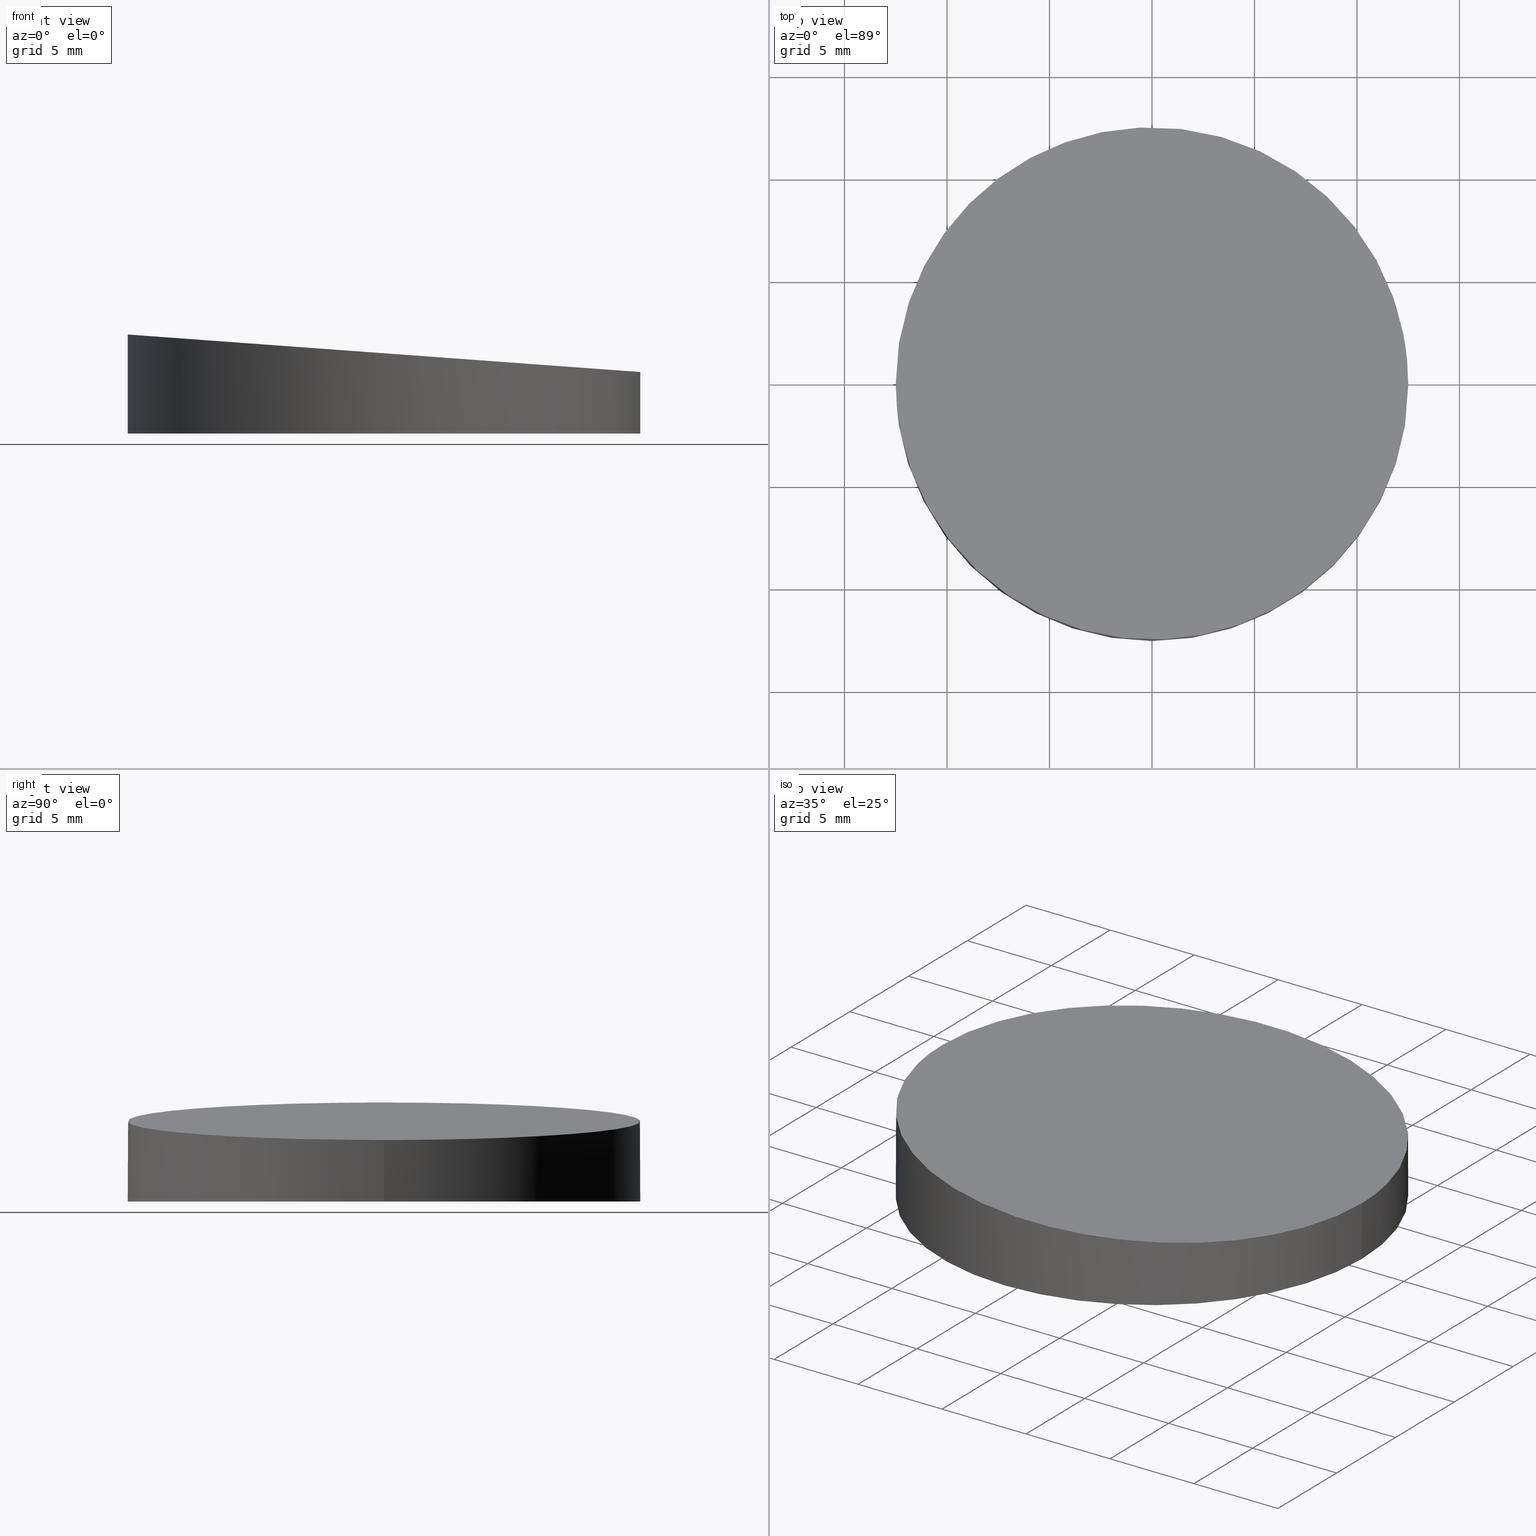
[diagram: canonical four-view strip — front | top / right | iso, engineering-drawing reading convention]
A machine part, canonical four-view strip (front | top / right | iso — engineering-drawing reading convention). The complete STEP part file that produces these views, byte-faithful:
ISO-10303-21;
HEADER;
FILE_DESCRIPTION (( 'STEP AP203' ),
    '1' );
FILE_NAME ('373532.STEP',
    '2019-07-24T09:19:28',
    ( '' ),
    ( '' ),
    'SwSTEP 2.0',
    'SolidWorks 2016',
    '' );
FILE_SCHEMA (( 'CONFIG_CONTROL_DESIGN' ));
ENDSEC;

DATA;
#1 = CC_DESIGN_APPROVAL ( #217, ( #145 ) ) ;
#2 = ADVANCED_FACE ( 'NONE', ( #195 ), #125, .T. ) ;
#3 = CC_DESIGN_PERSON_AND_ORGANIZATION_ASSIGNMENT ( #148, #230, ( #164 ) ) ;
#4 = CLOSED_SHELL ( 'NONE', ( #2, #199, #19, #46 ) ) ;
#5 = CALENDAR_DATE ( 2019, 24, 7 ) ;
#6 = CC_DESIGN_PERSON_AND_ORGANIZATION_ASSIGNMENT ( #160, #224, ( #229 ) ) ;
#7 = SECURITY_CLASSIFICATION_LEVEL ( 'unclassified' ) ;
#8 = CC_DESIGN_APPROVAL ( #48, ( #60 ) ) ;
#9 = ORIENTED_EDGE ( 'NONE', *, *, #20, .T. ) ;
#10 = APPLICATION_PROTOCOL_DEFINITION ( 'international standard', 'config_control_design', 1994, #95 ) ;
#11 = CARTESIAN_POINT ( 'NONE',  ( -12.49999999999999600, 0.0000000000000000000, 4.830182425211587500 ) ) ;
#12 = DATE_TIME_ROLE ( 'creation_date' ) ;
#13 = ORIENTED_EDGE ( 'NONE', *, *, #43, .F. ) ;
#14 = EDGE_CURVE ( 'NONE', #102, #237, #18, .T. ) ;
#15 = APPROVAL_PERSON_ORGANIZATION ( #83, #48, #184 ) ;
#16 = LOCAL_TIME ( 17, 19, 28.00000000000000000, #80 ) ;
#17 = CC_DESIGN_PERSON_AND_ORGANIZATION_ASSIGNMENT ( #240, #54, ( #145 ) ) ;
#18 =( BOUNDED_CURVE ( )  B_SPLINE_CURVE ( 3, ( #27, #69, #162, #181 ),
 .UNSPECIFIED., .F., .T. ) 
 B_SPLINE_CURVE_WITH_KNOTS ( ( 4, 4 ),
 ( 0.0000000000000000000, 3.141592653589793100 ),
 .UNSPECIFIED. ) 
 CURVE ( )  GEOMETRIC_REPRESENTATION_ITEM ( )  RATIONAL_B_SPLINE_CURVE ( ( 1.000000000000000000, 0.3333333333333333700, 0.3333333333333333700, 1.000000000000000000 ) ) 
 REPRESENTATION_ITEM ( '' )  );
#19 = ADVANCED_FACE ( 'NONE', ( #215 ), #166, .F. ) ;
#20 = EDGE_CURVE ( 'NONE', #157, #41, #188, .T. ) ;
#21 = PERSON_AND_ORGANIZATION ( #81, #223 ) ;
#22 = CC_DESIGN_SECURITY_CLASSIFICATION ( #60, ( #145 ) ) ;
#23 = ADVANCED_BREP_SHAPE_REPRESENTATION ( '373532', ( #178, #127 ), #78 ) ;
#24 = VECTOR ( 'NONE', #93, 1000.000000000000000 ) ;
#25 = APPROVAL_DATE_TIME ( #209, #151 ) ;
#26 = CC_DESIGN_PERSON_AND_ORGANIZATION_ASSIGNMENT ( #103, #59, ( #100 ) ) ;
#27 = CARTESIAN_POINT ( 'NONE',  ( 12.49999999999999600, 1.530808498934191100E-015, 3.000000000000000000 ) ) ;
#28 = APPROVAL_STATUS ( 'not_yet_approved' ) ;
#29 = COORDINATED_UNIVERSAL_TIME_OFFSET ( 8, 0, .AHEAD. ) ;
#30 = PERSON_AND_ORGANIZATION ( #81, #223 ) ;
#31 = CARTESIAN_POINT ( 'NONE',  ( 0.0000000000000000000, 0.0000000000000000000, 0.0000000000000000000 ) ) ;
#32 = APPROVAL ( #57, 'δָ��' ) ;
#33 = APPLICATION_CONTEXT ( 'configuration controlled 3d designs of mechanical parts and assemblies' ) ;
#34 = PLANE ( 'NONE',  #242 ) ;
#35 = CARTESIAN_POINT ( 'NONE',  ( 0.0000000000000000000, 0.0000000000000000000, 0.0000000000000000000 ) ) ;
#36 = DIRECTION ( 'NONE',  ( 1.000000000000000000, 0.0000000000000000000, 0.0000000000000000000 ) ) ;
#37 = LOCAL_TIME ( 17, 19, 28.00000000000000000, #249 ) ;
#38 = DATE_AND_TIME ( #68, #180 ) ;
#39 = DATE_AND_TIME ( #5, #197 ) ;
#40 = PRODUCT ( '373532', '373532', '', ( #222 ) ) ;
#41 = VERTEX_POINT ( 'NONE', #112 ) ;
#42 = LOCAL_TIME ( 17, 19, 28.00000000000000000, #155 ) ;
#43 = EDGE_CURVE ( 'NONE', #102, #41, #106, .T. ) ;
#44 = EDGE_LOOP ( 'NONE', ( #55, #111, #251, #63 ) ) ;
#45 = CALENDAR_DATE ( 2019, 24, 7 ) ;
#46 = ADVANCED_FACE ( 'NONE', ( #147 ), #34, .F. ) ;
#47 = CC_DESIGN_DATE_AND_TIME_ASSIGNMENT ( #58, #77, ( #210 ) ) ;
#48 = APPROVAL ( #52, 'δָ��' ) ;
#49 = APPROVAL ( #96, 'δָ��' ) ;
#50 = PERSON_AND_ORGANIZATION ( #81, #223 ) ;
#51 = CARTESIAN_POINT ( 'NONE',  ( 12.49999999999999600, 1.530808498934191100E-015, 3.000000000000000000 ) ) ;
#52 = APPROVAL_STATUS ( 'not_yet_approved' ) ;
#53 = DIRECTION ( 'NONE',  ( -0.0000000000000000000, -0.0000000000000000000, -1.000000000000000000 ) ) ;
#54 = PERSON_AND_ORGANIZATION_ROLE ( 'creator' ) ;
#55 = ORIENTED_EDGE ( 'NONE', *, *, #119, .T. ) ;
#56 = CARTESIAN_POINT ( 'NONE',  ( 0.0000000000000000000, 0.0000000000000000000, 0.0000000000000000000 ) ) ;
#57 = APPROVAL_STATUS ( 'not_yet_approved' ) ;
#58 = DATE_AND_TIME ( #61, #42 ) ;
#59 = PERSON_AND_ORGANIZATION_ROLE ( 'design_supplier' ) ;
#60 = SECURITY_CLASSIFICATION ( '', '', #7 ) ;
#61 = CALENDAR_DATE ( 2019, 24, 7 ) ;
#62 = AXIS2_PLACEMENT_3D ( 'NONE', #246, #76, #206 ) ;
#63 = ORIENTED_EDGE ( 'NONE', *, *, #115, .F. ) ;
#64 = SHAPE_DEFINITION_REPRESENTATION ( #67, #23 ) ;
#65 = LOCAL_TIME ( 17, 19, 28.00000000000000000, #122 ) ;
#66 = DIRECTION ( 'NONE',  ( -0.0000000000000000000, -0.0000000000000000000, -1.000000000000000000 ) ) ;
#67 = PRODUCT_DEFINITION_SHAPE ( 'NONE', 'NONE',  #164 ) ;
#68 = CALENDAR_DATE ( 2019, 24, 7 ) ;
#69 = CARTESIAN_POINT ( 'NONE',  ( 12.50000000000000000, -24.99999999999998900, 2.999999999999999600 ) ) ;
#70 = LOCAL_TIME ( 17, 19, 28.00000000000000000, #235 ) ;
#71 = APPLICATION_PROTOCOL_DEFINITION ( 'international standard', 'config_control_design', 1994, #167 ) ;
#72 = DIRECTION ( 'NONE',  ( 0.0000000000000000000, 0.0000000000000000000, 1.000000000000000000 ) ) ;
#73 = APPLICATION_PROTOCOL_DEFINITION ( 'international standard', 'config_control_design', 1994, #110 ) ;
#74 = CARTESIAN_POINT ( 'NONE',  ( -12.50000000000000000, 24.99999999999998900, 4.830182425211588400 ) ) ;
#75 = UNCERTAINTY_MEASURE_WITH_UNIT (LENGTH_MEASURE( 1.000000000000000100E-005 ), #207, 'distance_accuracy_value', 'NONE');
#76 = DIRECTION ( 'NONE',  ( 0.0000000000000000000, 0.0000000000000000000, 1.000000000000000000 ) ) ;
#77 = DATE_TIME_ROLE ( 'classification_date' ) ;
#78 =( GEOMETRIC_REPRESENTATION_CONTEXT ( 3 ) GLOBAL_UNCERTAINTY_ASSIGNED_CONTEXT ( ( #75 ) ) GLOBAL_UNIT_ASSIGNED_CONTEXT ( ( #207, #203, #114 ) ) REPRESENTATION_CONTEXT ( 'NONE', 'WORKASPACE' ) );
#79 = APPROVAL_PERSON_ORGANIZATION ( #175, #146, #134 ) ;
#80 = COORDINATED_UNIVERSAL_TIME_OFFSET ( 8, 0, .AHEAD. ) ;
#81 = PERSON ( 'δָ��', 'δָ��', 'δָ��', ('δָ��'), ('δָ��'), ('δָ��') ) ;
#82 = ORIENTED_EDGE ( 'NONE', *, *, #115, .T. ) ;
#83 = PERSON_AND_ORGANIZATION ( #81, #223 ) ;
#84 = CALENDAR_DATE ( 2019, 24, 7 ) ;
#85 = DATE_AND_TIME ( #158, #65 ) ;
#86 = AXIS2_PLACEMENT_3D ( 'NONE', #56, #152, #168 ) ;
#87 = APPROVAL_PERSON_ORGANIZATION ( #133, #151, #212 ) ;
#88 = APPROVAL_PERSON_ORGANIZATION ( #143, #217, #163 ) ;
#89 = PERSON_AND_ORGANIZATION ( #81, #223 ) ;
#90 = CARTESIAN_POINT ( 'NONE',  ( 12.50000000000000000, 24.99999999999998900, 2.999999999999999600 ) ) ;
#91 = MECHANICAL_CONTEXT ( 'NONE', #167, 'mechanical' ) ;
#92 = CARTESIAN_POINT ( 'NONE',  ( 0.0000000000000000000, 0.0000000000000000000, 0.0000000000000000000 ) ) ;
#93 = DIRECTION ( 'NONE',  ( -0.0000000000000000000, -0.0000000000000000000, -1.000000000000000000 ) ) ;
#94 = EDGE_LOOP ( 'NONE', ( #13, #156, #82, #9 ) ) ;
#95 = APPLICATION_CONTEXT ( 'configuration controlled 3d designs of mechanical parts and assemblies' ) ;
#96 = APPROVAL_STATUS ( 'not_yet_approved' ) ;
#97 = PERSON_AND_ORGANIZATION_ROLE ( 'classification_officer' ) ;
#98 = LINE ( 'NONE', #131, #24 ) ;
#99 = DATE_TIME_ROLE ( 'creation_date' ) ;
#100 = PRODUCT_DEFINITION_FORMATION_WITH_SPECIFIED_SOURCE ( '�κ�', '', #229, .NOT_KNOWN. ) ;
#101 = PRODUCT_DEFINITION ( 'δ֪', '', #145, #252 ) ;
#102 = VERTEX_POINT ( 'NONE', #113 ) ;
#103 = PERSON_AND_ORGANIZATION ( #81, #223 ) ;
#104 = ORIENTED_EDGE ( 'NONE', *, *, #119, .F. ) ;
#105 = CC_DESIGN_SECURITY_CLASSIFICATION ( #210, ( #100 ) ) ;
#106 = LINE ( 'NONE', #186, #200 ) ;
#107 = AXIS2_PLACEMENT_3D ( 'NONE', #204, #243, #190 ) ;
#108 = LOCAL_TIME ( 17, 19, 28.00000000000000000, #140 ) ;
#109 = PERSON_AND_ORGANIZATION_ROLE ( 'creator' ) ;
#110 = APPLICATION_CONTEXT ( 'configuration controlled 3d designs of mechanical parts and assemblies' ) ;
#111 = ORIENTED_EDGE ( 'NONE', *, *, #43, .T. ) ;
#112 = CARTESIAN_POINT ( 'NONE',  ( 12.49999999999999600, 1.530808498934191100E-015, 0.0000000000000000000 ) ) ;
#113 = CARTESIAN_POINT ( 'NONE',  ( 12.49999999999999600, 1.530808498934191100E-015, 3.000000000000000000 ) ) ;
#114 =( NAMED_UNIT ( * ) SI_UNIT ( $, .STERADIAN. ) SOLID_ANGLE_UNIT ( ) );
#115 = EDGE_CURVE ( 'NONE', #237, #157, #98, .T. ) ;
#116 = APPLICATION_PROTOCOL_DEFINITION ( 'international standard', 'config_control_design', 1994, #33 ) ;
#117 = EDGE_LOOP ( 'NONE', ( #248, #208 ) ) ;
#118 = APPROVAL_DATE_TIME ( #171, #32 ) ;
#119 = EDGE_CURVE ( 'NONE', #237, #102, #205, .T. ) ;
#120 = LOCAL_TIME ( 17, 19, 28.00000000000000000, #232 ) ;
#121 = LOCAL_TIME ( 17, 19, 28.00000000000000000, #29 ) ;
#122 = COORDINATED_UNIVERSAL_TIME_OFFSET ( 8, 0, .AHEAD. ) ;
#123 = CC_DESIGN_APPROVAL ( #151, ( #210 ) ) ;
#124 = CC_DESIGN_APPROVAL ( #146, ( #101 ) ) ;
#125 = CYLINDRICAL_SURFACE ( 'NONE', #159, 12.49999999999999600 ) ;
#126 = DATE_AND_TIME ( #84, #121 ) ;
#127 = AXIS2_PLACEMENT_3D ( 'NONE', #31, #245, #36 ) ;
#128 = PERSON_AND_ORGANIZATION_ROLE ( 'design_supplier' ) ;
#129 = DIRECTION ( 'NONE',  ( 1.000000000000000000, 0.0000000000000000000, 0.0000000000000000000 ) ) ;
#130 = CARTESIAN_POINT ( 'NONE',  ( 12.49999999999999600, -25.00000000000000000, 3.000000000000000000 ) ) ;
#131 = CARTESIAN_POINT ( 'NONE',  ( -12.49999999999999600, 0.0000000000000000000, 10.00000000000000000 ) ) ;
#132 = DIRECTION ( 'NONE',  ( -0.07301191176743963800, 0.0000000000000000000, -0.9973310687730848600 ) ) ;
#133 = PERSON_AND_ORGANIZATION ( #81, #223 ) ;
#134 = APPROVAL_ROLE ( '' ) ;
#135 = AXIS2_PLACEMENT_3D ( 'NONE', #35, #227, #129 ) ;
#136 = PERSON_AND_ORGANIZATION ( #81, #223 ) ;
#137 = APPROVAL_DATE_TIME ( #182, #48 ) ;
#138 = APPROVAL_STATUS ( 'not_yet_approved' ) ;
#139 = FACE_OUTER_BOUND ( 'NONE', #94, .T. ) ;
#140 = COORDINATED_UNIVERSAL_TIME_OFFSET ( 8, 0, .AHEAD. ) ;
#141 = CC_DESIGN_DATE_AND_TIME_ASSIGNMENT ( #39, #165, ( #60 ) ) ;
#142 = CC_DESIGN_APPROVAL ( #49, ( #164 ) ) ;
#143 = PERSON_AND_ORGANIZATION ( #81, #223 ) ;
#144 = CALENDAR_DATE ( 2019, 24, 7 ) ;
#145 = PRODUCT_DEFINITION_FORMATION_WITH_SPECIFIED_SOURCE ( '�κ�', '', #40, .NOT_KNOWN. ) ;
#146 = APPROVAL ( #187, 'δָ��' ) ;
#147 = FACE_OUTER_BOUND ( 'NONE', #154, .T. ) ;
#148 = PERSON_AND_ORGANIZATION ( #81, #223 ) ;
#149 = PERSON_AND_ORGANIZATION_ROLE ( 'classification_officer' ) ;
#150 = PERSON_AND_ORGANIZATION_ROLE ( 'design_owner' ) ;
#151 = APPROVAL ( #138, 'δָ��' ) ;
#152 = DIRECTION ( 'NONE',  ( 0.0000000000000000000, 0.0000000000000000000, 1.000000000000000000 ) ) ;
#153 = CARTESIAN_POINT ( 'NONE',  ( -12.49999999999999600, 0.0000000000000000000, 0.0000000000000000000 ) ) ;
#154 = EDGE_LOOP ( 'NONE', ( #104, #244 ) ) ;
#155 = COORDINATED_UNIVERSAL_TIME_OFFSET ( 8, 0, .AHEAD. ) ;
#156 = ORIENTED_EDGE ( 'NONE', *, *, #14, .T. ) ;
#157 = VERTEX_POINT ( 'NONE', #153 ) ;
#158 = CALENDAR_DATE ( 2019, 24, 7 ) ;
#159 = AXIS2_PLACEMENT_3D ( 'NONE', #201, #66, #221 ) ;
#160 = PERSON_AND_ORGANIZATION ( #81, #223 ) ;
#161 = APPROVAL_PERSON_ORGANIZATION ( #30, #32, #193 ) ;
#162 = CARTESIAN_POINT ( 'NONE',  ( -12.49999999999999500, -24.99999999999998900, 4.830182425211588400 ) ) ;
#163 = APPROVAL_ROLE ( '' ) ;
#164 = PRODUCT_DEFINITION ( 'δ֪', '', #100, #247 ) ;
#165 = DATE_TIME_ROLE ( 'classification_date' ) ;
#166 = PLANE ( 'NONE',  #86 ) ;
#167 = APPLICATION_CONTEXT ( 'configuration controlled 3d designs of mechanical parts and assemblies' ) ;
#168 = DIRECTION ( 'NONE',  ( 1.000000000000000000, 0.0000000000000000000, -0.0000000000000000000 ) ) ;
#169 = CIRCLE ( 'NONE', #62, 12.49999999999999600 ) ;
#170 = APPROVAL_ROLE ( '' ) ;
#171 = DATE_AND_TIME ( #219, #120 ) ;
#172 = PRODUCT_DEFINITION_SHAPE ( 'NONE', 'NONE',  #101 ) ;
#173 = CC_DESIGN_DATE_AND_TIME_ASSIGNMENT ( #38, #12, ( #101 ) ) ;
#174 = COORDINATED_UNIVERSAL_TIME_OFFSET ( 8, 0, .AHEAD. ) ;
#175 = PERSON_AND_ORGANIZATION ( #81, #223 ) ;
#176 = DATE_AND_TIME ( #216, #70 ) ;
#177 = CC_DESIGN_PERSON_AND_ORGANIZATION_ASSIGNMENT ( #136, #150, ( #40 ) ) ;
#178 = MANIFOLD_SOLID_BREP ( '�г�-����1', #4 ) ;
#179 = COORDINATED_UNIVERSAL_TIME_OFFSET ( 8, 0, .AHEAD. ) ;
#180 = LOCAL_TIME ( 17, 19, 28.00000000000000000, #174 ) ;
#181 = CARTESIAN_POINT ( 'NONE',  ( -12.49999999999999600, 0.0000000000000000000, 4.830182425211587500 ) ) ;
#182 = DATE_AND_TIME ( #234, #16 ) ;
#183 = CARTESIAN_POINT ( 'NONE',  ( -12.49999999999999600, 0.0000000000000000000, 4.830182425211587500 ) ) ;
#184 = APPROVAL_ROLE ( '' ) ;
#185 = DIRECTION ( 'NONE',  ( -0.9973310687730847500, 0.0000000000000000000, 0.07301191176743962500 ) ) ;
#186 = CARTESIAN_POINT ( 'NONE',  ( 12.49999999999999600, 1.530808498934191100E-015, 10.00000000000000000 ) ) ;
#187 = APPROVAL_STATUS ( 'not_yet_approved' ) ;
#188 = CIRCLE ( 'NONE', #250, 12.49999999999999600 ) ;
#189 = PERSON_AND_ORGANIZATION ( #81, #223 ) ;
#190 = DIRECTION ( 'NONE',  ( -1.000000000000000000, 0.0000000000000000000, 0.0000000000000000000 ) ) ;
#191 = PERSON_AND_ORGANIZATION_ROLE ( 'creator' ) ;
#192 = APPROVAL_PERSON_ORGANIZATION ( #189, #49, #170 ) ;
#193 = APPROVAL_ROLE ( '' ) ;
#194 = PERSON_AND_ORGANIZATION ( #81, #223 ) ;
#195 = FACE_OUTER_BOUND ( 'NONE', #44, .T. ) ;
#196 = CC_DESIGN_PERSON_AND_ORGANIZATION_ASSIGNMENT ( #89, #128, ( #145 ) ) ;
#197 = LOCAL_TIME ( 17, 19, 28.00000000000000000, #179 ) ;
#198 = CYLINDRICAL_SURFACE ( 'NONE', #107, 12.49999999999999600 ) ;
#199 = ADVANCED_FACE ( 'NONE', ( #139 ), #198, .T. ) ;
#200 = VECTOR ( 'NONE', #53, 1000.000000000000000 ) ;
#201 = CARTESIAN_POINT ( 'NONE',  ( 0.0000000000000000000, 0.0000000000000000000, 10.00000000000000000 ) ) ;
#202 = CC_DESIGN_PERSON_AND_ORGANIZATION_ASSIGNMENT ( #21, #109, ( #101 ) ) ;
#203 =( NAMED_UNIT ( * ) PLANE_ANGLE_UNIT ( ) SI_UNIT ( $, .RADIAN. ) );
#204 = CARTESIAN_POINT ( 'NONE',  ( 0.0000000000000000000, 0.0000000000000000000, 10.00000000000000000 ) ) ;
#205 =( BOUNDED_CURVE ( )  B_SPLINE_CURVE ( 3, ( #183, #74, #90, #51 ),
 .UNSPECIFIED., .F., .F. ) 
 B_SPLINE_CURVE_WITH_KNOTS ( ( 4, 4 ),
 ( 3.141592653589793100, 6.283185307179586200 ),
 .UNSPECIFIED. ) 
 CURVE ( )  GEOMETRIC_REPRESENTATION_ITEM ( )  RATIONAL_B_SPLINE_CURVE ( ( 1.000000000000000000, 0.3333333333333333700, 0.3333333333333333700, 1.000000000000000000 ) ) 
 REPRESENTATION_ITEM ( '' )  );
#206 = DIRECTION ( 'NONE',  ( 1.000000000000000000, 0.0000000000000000000, 0.0000000000000000000 ) ) ;
#207 =( LENGTH_UNIT ( ) NAMED_UNIT ( * ) SI_UNIT ( .MILLI., .METRE. ) );
#208 = ORIENTED_EDGE ( 'NONE', *, *, #239, .F. ) ;
#209 = DATE_AND_TIME ( #144, #37 ) ;
#210 = SECURITY_CLASSIFICATION ( '', '', #233 ) ;
#211 = CC_DESIGN_PERSON_AND_ORGANIZATION_ASSIGNMENT ( #236, #149, ( #60 ) ) ;
#212 = APPROVAL_ROLE ( '' ) ;
#213 = PRODUCT_RELATED_PRODUCT_CATEGORY ( 'detail', '', ( #40 ) ) ;
#214 = CC_DESIGN_DATE_AND_TIME_ASSIGNMENT ( #218, #99, ( #164 ) ) ;
#215 = FACE_OUTER_BOUND ( 'NONE', #117, .T. ) ;
#216 = CALENDAR_DATE ( 2019, 24, 7 ) ;
#217 = APPROVAL ( #28, 'δָ��' ) ;
#218 = DATE_AND_TIME ( #45, #108 ) ;
#219 = CALENDAR_DATE ( 2019, 24, 7 ) ;
#220 = CC_DESIGN_PERSON_AND_ORGANIZATION_ASSIGNMENT ( #194, #191, ( #100 ) ) ;
#221 = DIRECTION ( 'NONE',  ( -1.000000000000000000, 0.0000000000000000000, 0.0000000000000000000 ) ) ;
#222 = MECHANICAL_CONTEXT ( 'NONE', #95, 'mechanical' ) ;
#223 = ORGANIZATION ( 'δָ��', 'δָ��', '' ) ;
#224 = PERSON_AND_ORGANIZATION_ROLE ( 'design_owner' ) ;
#225 = DIRECTION ( 'NONE',  ( 1.000000000000000000, 0.0000000000000000000, 0.0000000000000000000 ) ) ;
#226 = CC_DESIGN_PERSON_AND_ORGANIZATION_ASSIGNMENT ( #50, #97, ( #210 ) ) ;
#227 = DIRECTION ( 'NONE',  ( 0.0000000000000000000, 0.0000000000000000000, 1.000000000000000000 ) ) ;
#228 = PRODUCT_RELATED_PRODUCT_CATEGORY ( 'detail', '', ( #229 ) ) ;
#229 = PRODUCT ( '373532', '373532', '', ( #91 ) ) ;
#230 = PERSON_AND_ORGANIZATION_ROLE ( 'creator' ) ;
#231 = APPROVAL_DATE_TIME ( #126, #146 ) ;
#232 = COORDINATED_UNIVERSAL_TIME_OFFSET ( 8, 0, .AHEAD. ) ;
#233 = SECURITY_CLASSIFICATION_LEVEL ( 'unclassified' ) ;
#234 = CALENDAR_DATE ( 2019, 24, 7 ) ;
#235 = COORDINATED_UNIVERSAL_TIME_OFFSET ( 8, 0, .AHEAD. ) ;
#236 = PERSON_AND_ORGANIZATION ( #81, #223 ) ;
#237 = VERTEX_POINT ( 'NONE', #11 ) ;
#238 = APPROVAL_DATE_TIME ( #176, #217 ) ;
#239 = EDGE_CURVE ( 'NONE', #41, #157, #169, .T. ) ;
#240 = PERSON_AND_ORGANIZATION ( #81, #223 ) ;
#241 = CC_DESIGN_APPROVAL ( #32, ( #100 ) ) ;
#242 = AXIS2_PLACEMENT_3D ( 'NONE', #130, #132, #185 ) ;
#243 = DIRECTION ( 'NONE',  ( -0.0000000000000000000, -0.0000000000000000000, -1.000000000000000000 ) ) ;
#244 = ORIENTED_EDGE ( 'NONE', *, *, #14, .F. ) ;
#245 = DIRECTION ( 'NONE',  ( 0.0000000000000000000, 0.0000000000000000000, 1.000000000000000000 ) ) ;
#246 = CARTESIAN_POINT ( 'NONE',  ( 0.0000000000000000000, 0.0000000000000000000, 0.0000000000000000000 ) ) ;
#247 = DESIGN_CONTEXT ( 'detailed design', #110, 'design' ) ;
#248 = ORIENTED_EDGE ( 'NONE', *, *, #20, .F. ) ;
#249 = COORDINATED_UNIVERSAL_TIME_OFFSET ( 8, 0, .AHEAD. ) ;
#250 = AXIS2_PLACEMENT_3D ( 'NONE', #92, #72, #225 ) ;
#251 = ORIENTED_EDGE ( 'NONE', *, *, #239, .T. ) ;
#252 = DESIGN_CONTEXT ( 'detailed design', #33, 'design' ) ;
#253 = APPROVAL_DATE_TIME ( #85, #49 ) ;
ENDSEC;
END-ISO-10303-21;
